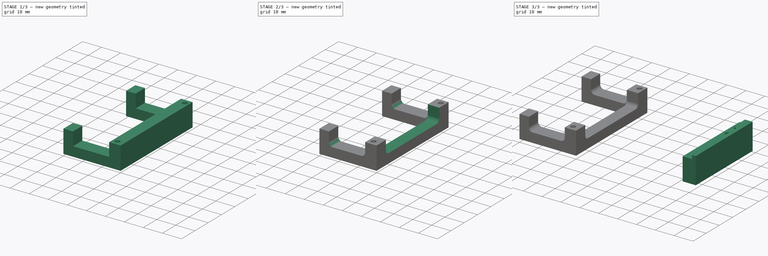
[diagram: build sequence overview — one tinted view per stage of 3, left to right]
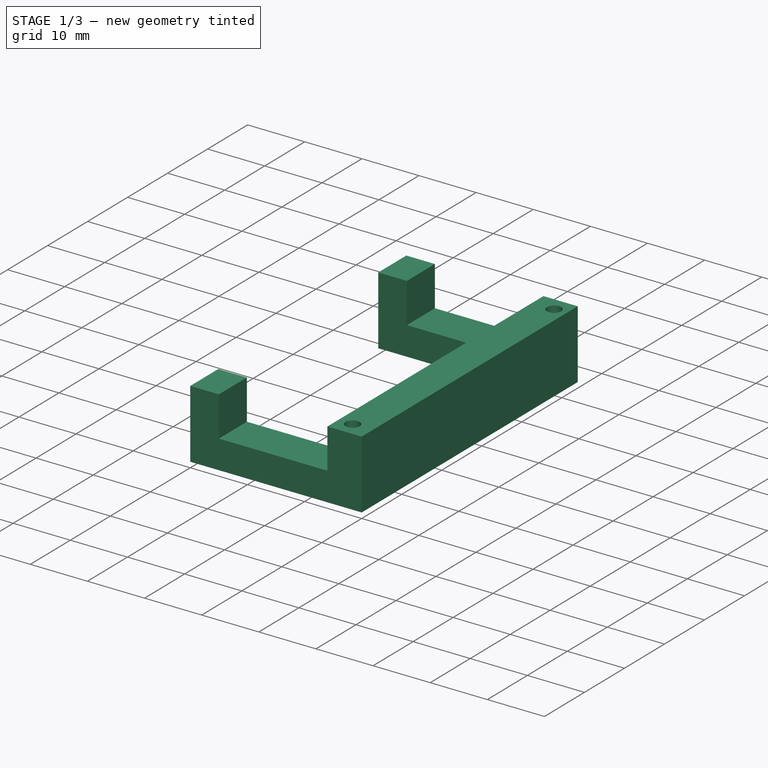
[diagram: stage 1 of 3 — iso view after this stage's code; geometry added in this stage tinted green]
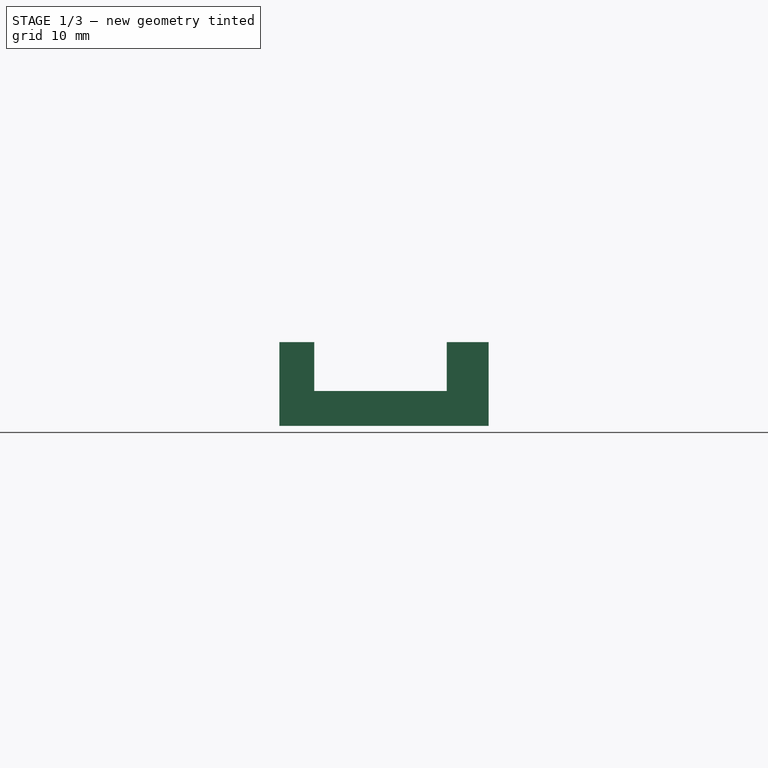
[diagram: stage 1 of 3 — front view after this stage's code; geometry added in this stage tinted green]
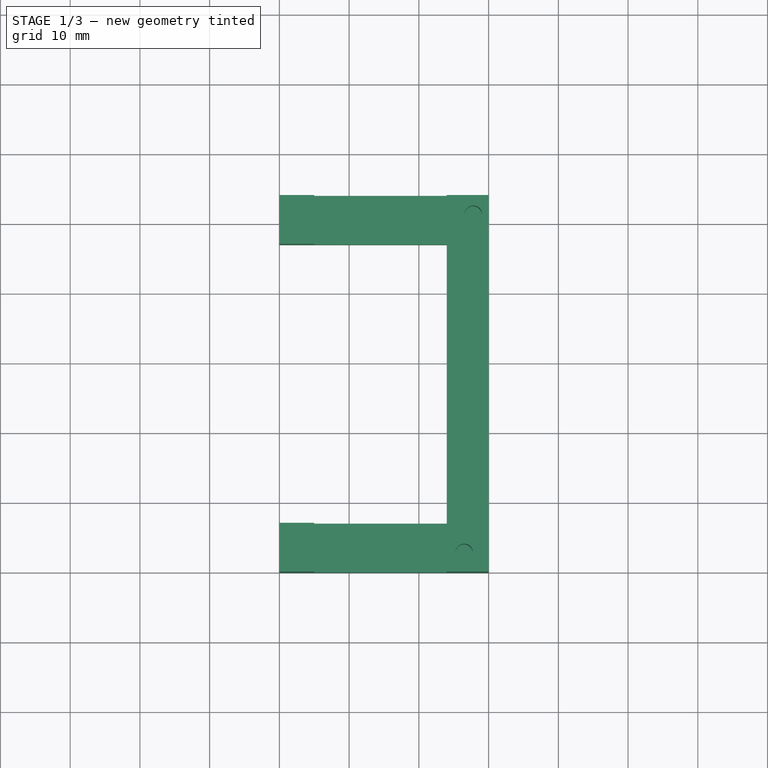
[diagram: stage 1 of 3 — top view after this stage's code; geometry added in this stage tinted green]
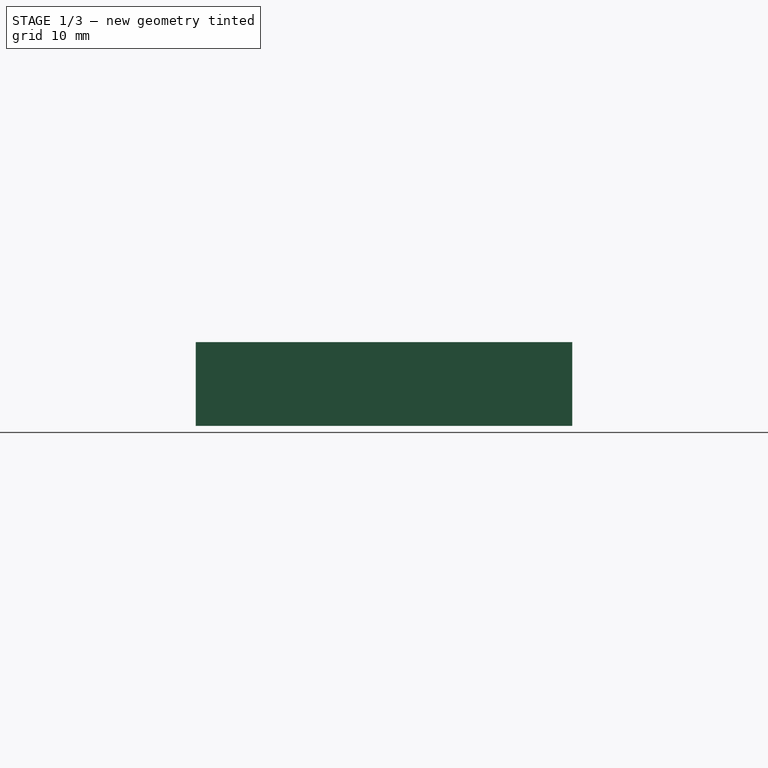
[diagram: stage 1 of 3 — right view after this stage's code; geometry added in this stage tinted green]
FCSTD DOCUMENT  (FreeCAD 0.16R6707 (Git))
Label: Nucleo-64-supports
License: All rights reserved
LicenseURL: http://en.wikipedia.org/wiki/All_rights_reserved
objects: Sketcher::SketchObject×7, PartDesign::Pocket×5, PartDesign::Pad×2, App::DocumentObjectGroup×2, Part::Fillet×1
note: 22 computed .brp shape members not serialized (recipe doc carries the construction recipe); baked Part::Feature solids carry a one-line shape summary decoded from their .brp

FEATURE [App::DocumentObjectGroup] Group001  label="Rear Part"
  Group = -> [Pad001,Pocket002,Pocket003]
FEATURE [Sketcher::SketchObject] Sketch006  label="front support profile"
  sketch-geometry (8):
    g0: LineSegment StartX=-30 StartY=54 StartZ=0 EndX=0 EndY=54 EndZ=0
    g1: LineSegment StartX=0 StartY=54 StartZ=0 EndX=0 EndY=0 EndZ=0
    g2: LineSegment StartX=0 StartY=0 StartZ=0 EndX=-30 EndY=0 EndZ=0
    g3: LineSegment StartX=-30 StartY=0 StartZ=0 EndX=-30 EndY=7 EndZ=0
    g4: LineSegment StartX=-30 StartY=7 StartZ=0 EndX=-6 EndY=7 EndZ=0
    g5: LineSegment StartX=-6 StartY=7 StartZ=0 EndX=-6 EndY=47 EndZ=0
    g6: LineSegment StartX=-6 StartY=47 StartZ=0 EndX=-30 EndY=47 EndZ=0
    g7: LineSegment StartX=-30 StartY=47 StartZ=0 EndX=-30 EndY=54 EndZ=0
  constraints (23):
    c: Horizontal(g0)
    c: Coincident(g0,g1)
    c: Vertical(g1)
    c: Coincident(g1,g2)
    c: Horizontal(g2)
    c: Coincident(g2,g3)
    c: Vertical(g3)
    c: Coincident(g3,g4)
    c: Horizontal(g4)
    c: Coincident(g4,g5)
    c: Vertical(g5)
    c: Coincident(g5,g6)
    c: Horizontal(g6)
    c: Coincident(g6,g7)
    c: Coincident(g7,g0)
    c: Vertical(g7)
    c: Equal(g4,g6)
    c: Equal(g3,g7)
    c: DistanceY(g1,g1) = 54
    c: DistanceX(g5,g0) = 6
    c: DistanceX(g2,g2) = 30
    c: DistanceY(g7,g7) = 7
    c: Coincident(g1,g-1)
FEATURE [PartDesign::Pad] Pad002  label="front support base shape"
  Length = 12
  Length2 = 100
  Sketch = -> Sketch006
  Type = 0
FEATURE [Sketcher::SketchObject] Sketch007  label="screw holes profile"
  ExternalGeometry = -> [Pad002]
  Placement = pos=(0,0,12) rot=(0,0,1;0rad)
  Support = -> Pad002 [Face10]
  sketch-geometry (2):
    g0: Circle CenterX=-2.2 CenterY=51.25 CenterZ=0 NormalX=0 NormalY=0 NormalZ=1 Radius=1.25
    g1: Circle CenterX=-3.5 CenterY=2.75 CenterZ=0 NormalX=0 NormalY=0 NormalZ=1 Radius=1.25
  constraints (6):
    c: DistanceX(g-4,g0) = 3.8
    c: DistanceX(g-4,g1) = 2.5
    c: DistanceY(g0,g-3) = 2.75
    c: Equal(g0,g1)
    c: Radius(g0) = 1.25
    c: DistanceY(g1,g0) = 48.5
FEATURE [PartDesign::Pocket] Pocket004  label="screw holes"
  Length = 8
  Sketch = -> Sketch007
  Type = 0
FEATURE [Sketcher::SketchObject] Sketch008  label="material cutout profile 1"
  ExternalGeometry = -> [Pocket004]
  Placement = pos=(0,0,12) rot=(0,0,1;0rad)
  Support = -> Pocket004 [Face5]
  sketch-geometry (8):
    g0: LineSegment StartX=-25 StartY=54 StartZ=0 EndX=-6 EndY=54 EndZ=0
    g1: LineSegment StartX=-6 StartY=54 StartZ=0 EndX=-6 EndY=47 EndZ=0
    g2: LineSegment StartX=-6 StartY=47 StartZ=0 EndX=-25 EndY=47 EndZ=0
    g3: LineSegment StartX=-25 StartY=47 StartZ=0 EndX=-25 EndY=54 EndZ=0
    g4: LineSegment StartX=-6 StartY=7 StartZ=0 EndX=-25 EndY=7 EndZ=0
    g5: LineSegment StartX=-25 StartY=7 StartZ=0 EndX=-25 EndY=0 EndZ=0
    g6: LineSegment StartX=-25 StartY=0 StartZ=0 EndX=-6 EndY=0 EndZ=0
    g7: LineSegment StartX=-6 StartY=0 StartZ=0 EndX=-6 EndY=7 EndZ=0
  constraints (22):
    c: Coincident(g0,g1)
    c: Coincident(g1,g2)
    c: Coincident(g2,g3)
    c: Coincident(g3,g0)
    c: Horizontal(g0)
    c: Horizontal(g2)
    c: Vertical(g1)
    c: Vertical(g3)
    c: Coincident(g4,g5)
    c: Coincident(g5,g6)
    c: Coincident(g6,g7)
    c: Coincident(g7,g4)
    c: Horizontal(g4)
    c: Horizontal(g6)
    c: Vertical(g5)
    c: Vertical(g7)
    c: Equal(g2,g4)
    c: DistanceX(g2,g2) = 19
    c: Coincident(g1,g-4)
    c: Coincident(g4,g-5)
    c: PointOnObject(g5,g-8)
    c: PointOnObject(g0,g-6)
FEATURE [PartDesign::Pocket] Pocket005  label="material cutout 1"
  Length = 7
  Sketch = -> Sketch008
  Type = 0
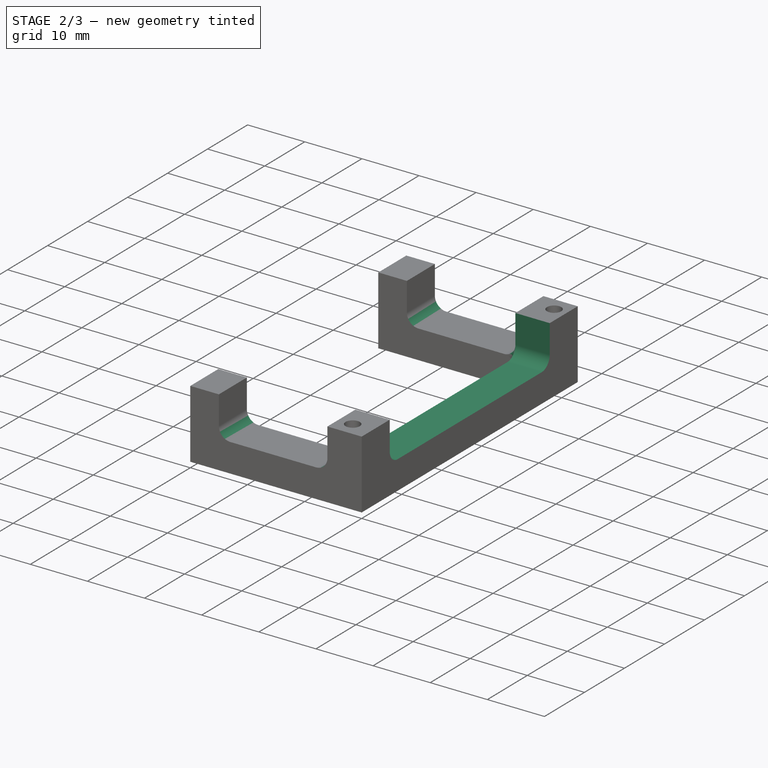
[diagram: stage 2 of 3 — iso view after this stage's code; geometry added in this stage tinted green]
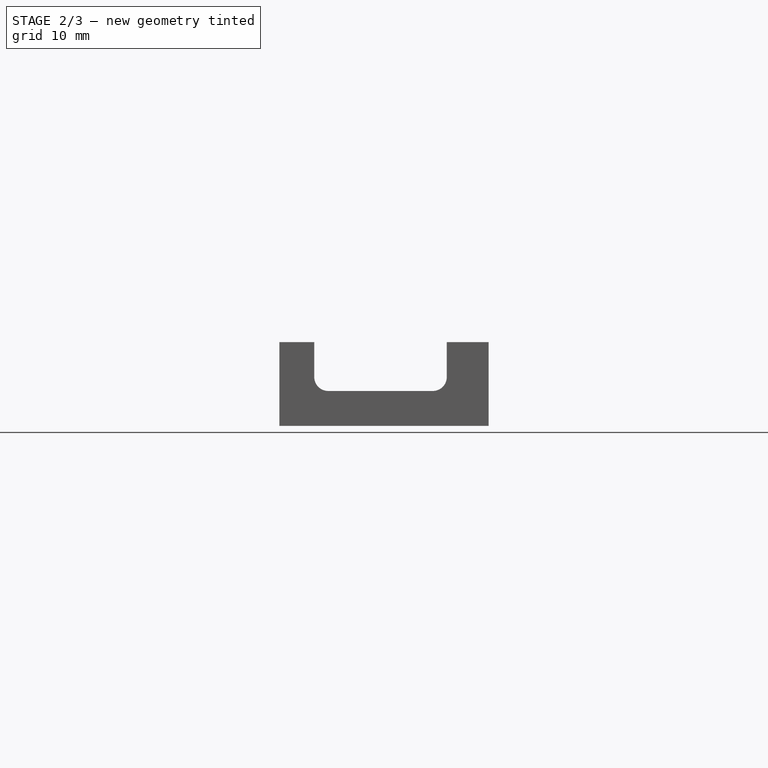
[diagram: stage 2 of 3 — front view after this stage's code; geometry added in this stage tinted green]
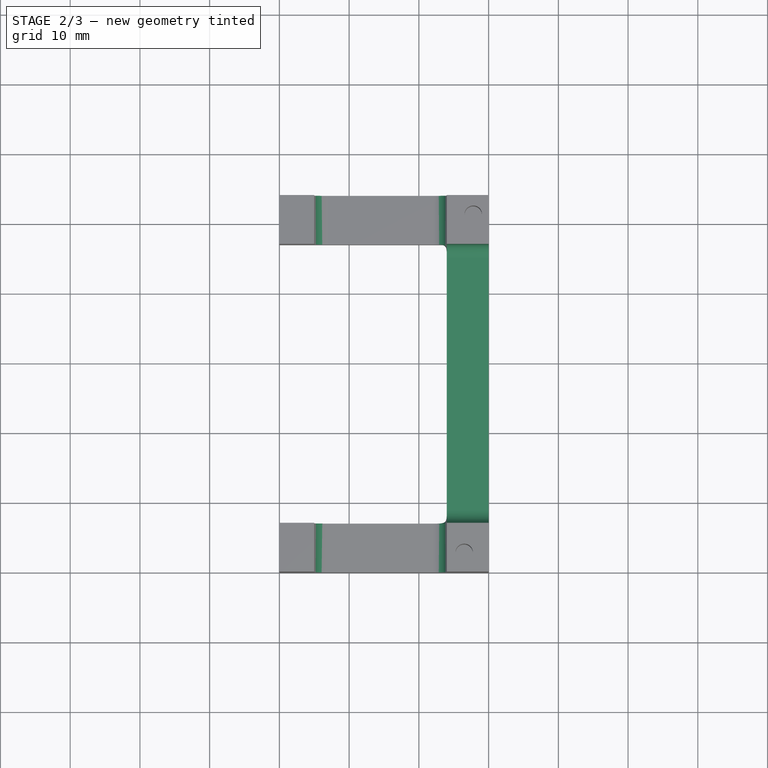
[diagram: stage 2 of 3 — top view after this stage's code; geometry added in this stage tinted green]
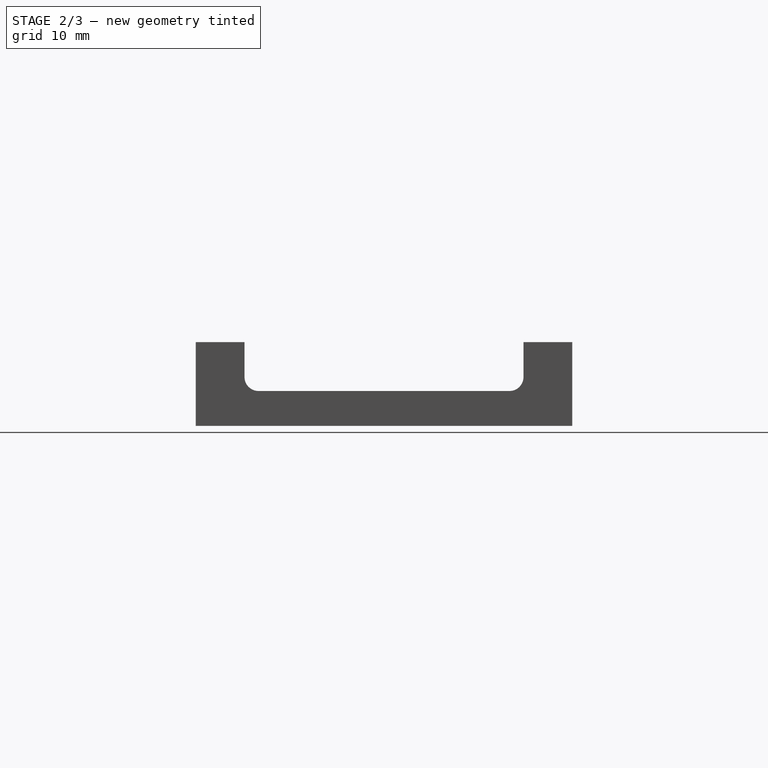
[diagram: stage 2 of 3 — right view after this stage's code; geometry added in this stage tinted green]
FEATURE [Sketcher::SketchObject] Sketch009  label="material cutout profile 2"
  ExternalGeometry = -> [Pocket005]
  Placement = pos=(0,0,12) rot=(0,0,1;0rad)
  Support = -> Pocket005 [Face4]
  sketch-geometry (4):
    g0: LineSegment StartX=-6 StartY=47 StartZ=0 EndX=0 EndY=47 EndZ=0
    g1: LineSegment StartX=0 StartY=47 StartZ=0 EndX=0 EndY=7 EndZ=0
    g2: LineSegment StartX=0 StartY=7 StartZ=0 EndX=-6 EndY=7 EndZ=0
    g3: LineSegment StartX=-6 StartY=7 StartZ=0 EndX=-6 EndY=47 EndZ=0
  constraints (11):
    c: Coincident(g0,g1)
    c: Coincident(g1,g2)
    c: Coincident(g2,g3)
    c: Coincident(g3,g0)
    c: Horizontal(g0)
    c: Horizontal(g2)
    c: Vertical(g1)
    c: Vertical(g3)
    c: Coincident(g0,g-3)
    c: Coincident(g2,g-3)
    c: PointOnObject(g1,g-4)
FEATURE [PartDesign::Pocket] Pocket006  label="material cutout 2"
  Length = 7
  Sketch = -> Sketch009
  Type = 0
FEATURE [Part::Fillet] Fillet001  label="Rounded edges"
  Base = -> Pocket006
  Edges = 6 edges r=2: [Edge25,Edge27,Edge51,Edge53,Edge57,Edge58]
FEATURE [App::DocumentObjectGroup] Group002  label="Front Part"
  Group = -> [Pad002,Pocket004,Pocket005,Pocket006,Fillet001]
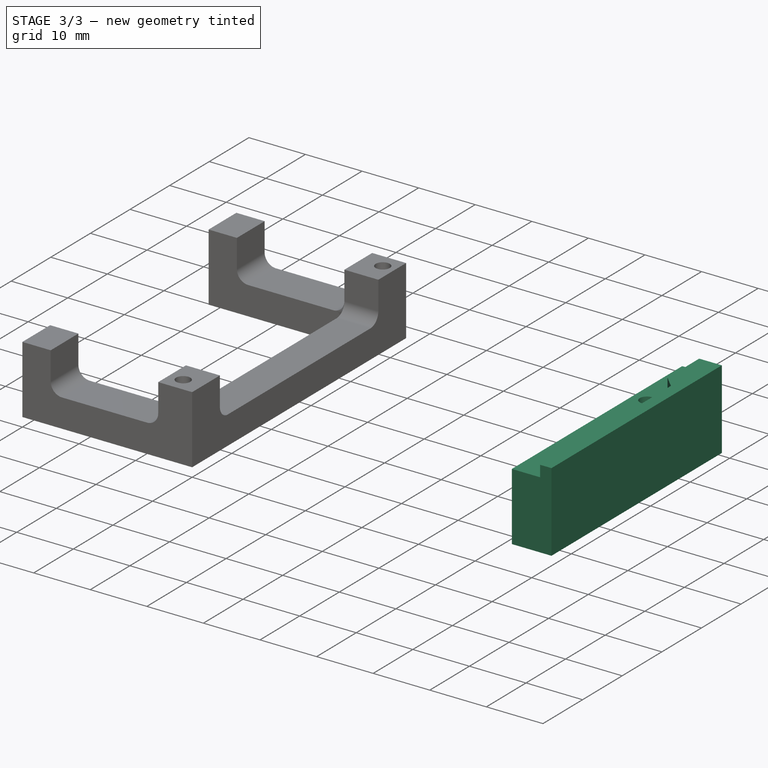
[diagram: stage 3 of 3 — iso view after this stage's code; geometry added in this stage tinted green]
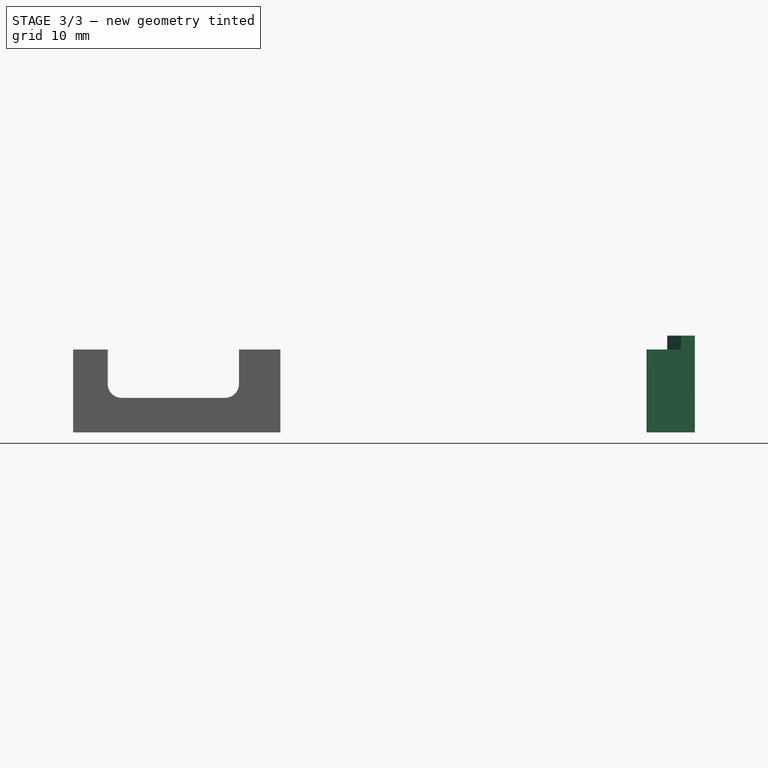
[diagram: stage 3 of 3 — front view after this stage's code; geometry added in this stage tinted green]
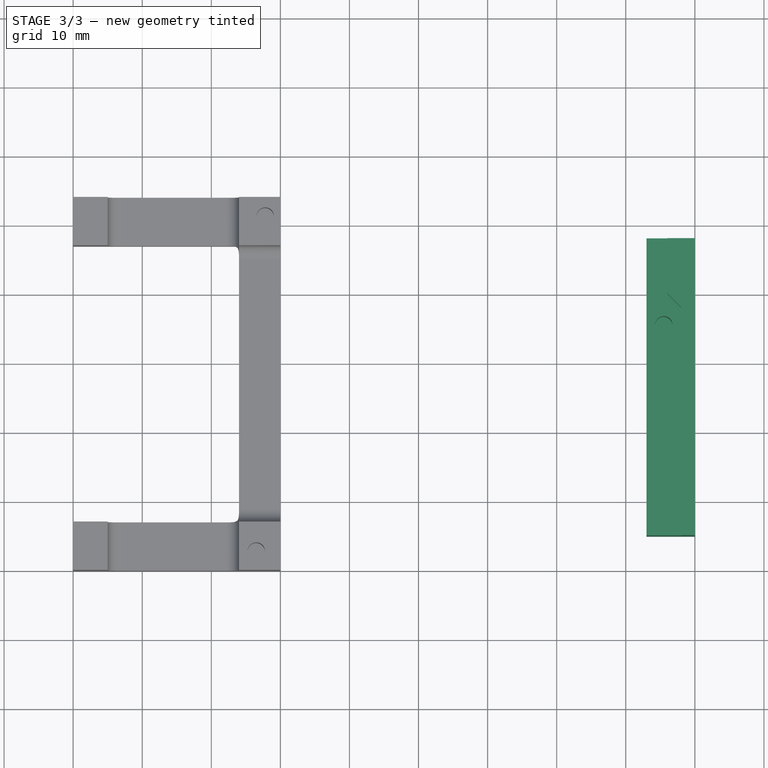
[diagram: stage 3 of 3 — top view after this stage's code; geometry added in this stage tinted green]
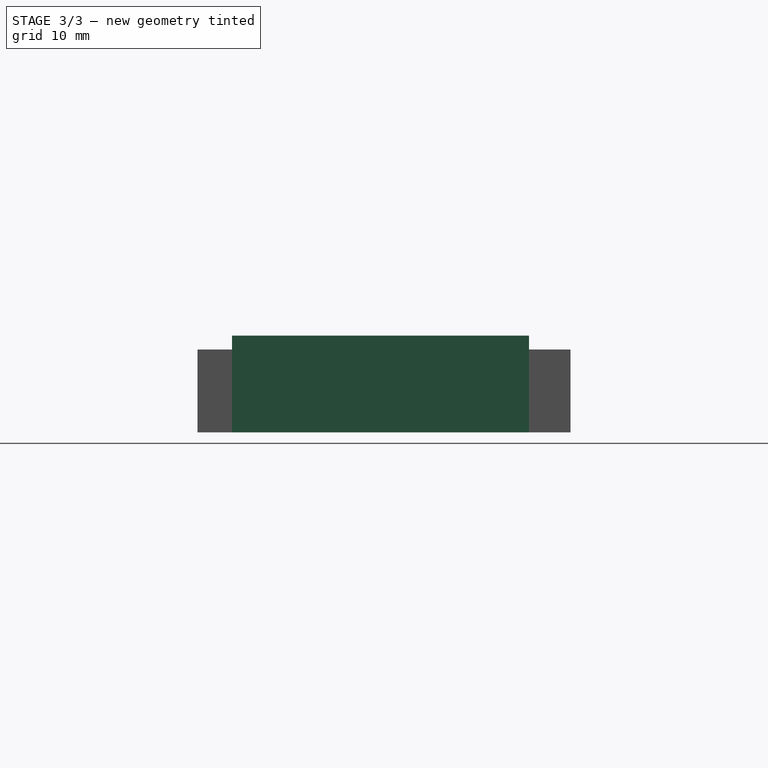
[diagram: stage 3 of 3 — right view after this stage's code; geometry added in this stage tinted green]
FEATURE [Sketcher::SketchObject] Sketch003  label="rear support bar profile"
  sketch-geometry (4):
    g0: LineSegment StartX=53 StartY=48 StartZ=0 EndX=60 EndY=48 EndZ=0
    g1: LineSegment StartX=60 StartY=48 StartZ=0 EndX=60 EndY=5 EndZ=0
    g2: LineSegment StartX=60 StartY=5 StartZ=0 EndX=53 EndY=5 EndZ=0
    g3: LineSegment StartX=53 StartY=5 StartZ=0 EndX=53 EndY=48 EndZ=0
  constraints (12):
    c: Coincident(g0,g1)
    c: Coincident(g1,g2)
    c: Coincident(g2,g3)
    c: Coincident(g3,g0)
    c: Horizontal(g0)
    c: Horizontal(g2)
    c: Vertical(g1)
    c: Vertical(g3)
    c: DistanceX(g2,g2) = 7
    c: DistanceX(g-1,g2) = 53
    c: DistanceY(g1,g1) = 43
    c: DistanceY(g-1,g2) = 5
FEATURE [PartDesign::Pad] Pad001  label="rear support bar"
  Length = 14
  Length2 = 100
  Sketch = -> Sketch003
  Type = 0
FEATURE [Sketcher::SketchObject] Sketch004  label="rear support board contour cutout profile"
  ExternalGeometry = -> [Pad001]
  Placement = pos=(0,0,14) rot=(0,0,1;0rad)
  Support = -> Pad001 [Face6]
  sketch-geometry (6):
    g0: LineSegment StartX=56 StartY=48 StartZ=0 EndX=56 EndY=40 EndZ=0
    g1: LineSegment StartX=56 StartY=40 StartZ=0 EndX=58 EndY=38 EndZ=0
    g2: LineSegment StartX=58 StartY=38 StartZ=0 EndX=58 EndY=5 EndZ=0
    g3: LineSegment StartX=58 StartY=5 StartZ=0 EndX=53 EndY=5 EndZ=0
    g4: LineSegment StartX=53 StartY=5 StartZ=0 EndX=53 EndY=48 EndZ=0
    g5: LineSegment StartX=53 StartY=48 StartZ=0 EndX=56 EndY=48 EndZ=0
  constraints (17):
    c: Vertical(g0)
    c: Coincident(g0,g1)
    c: Coincident(g1,g2)
    c: Vertical(g2)
    c: Coincident(g2,g3)
    c: Horizontal(g3)
    c: Coincident(g3,g4)
    c: Vertical(g4)
    c: Coincident(g4,g5)
    c: Coincident(g5,g0)
    c: Horizontal(g5)
    c: DistanceX(g0,g1) = 2
    c: DistanceY(g1,g0) = 2
    c: DistanceY(g0,g0) = 8
    c: Coincident(g4,g-5)
    c: PointOnObject(g2,g-4)
    c: DistanceX(g2,g-4) = 2
FEATURE [PartDesign::Pocket] Pocket002  label="board contour cutout"
  Length = 2
  Sketch = -> Sketch004
  Type = 0
FEATURE [Sketcher::SketchObject] Sketch005  label="rear support screw hole profile"
  ExternalGeometry = -> [Pocket002]
  Placement = pos=(0,0,12) rot=(0,0,1;0rad)
  Support = -> Pocket002 [Face6]
  sketch-geometry (1):
    g0: Circle CenterX=55.5 CenterY=35.5 CenterZ=0 NormalX=0 NormalY=0 NormalZ=1 Radius=1.25
  constraints (3):
    c: Radius(g0) = 1.25
    c: DistanceY(g0,g-3) = 2.5
    c: DistanceX(g0,g-3) = 2.5
FEATURE [PartDesign::Pocket] Pocket003  label="screw hole pocket"
  Length = 8
  Sketch = -> Sketch005
  Type = 0
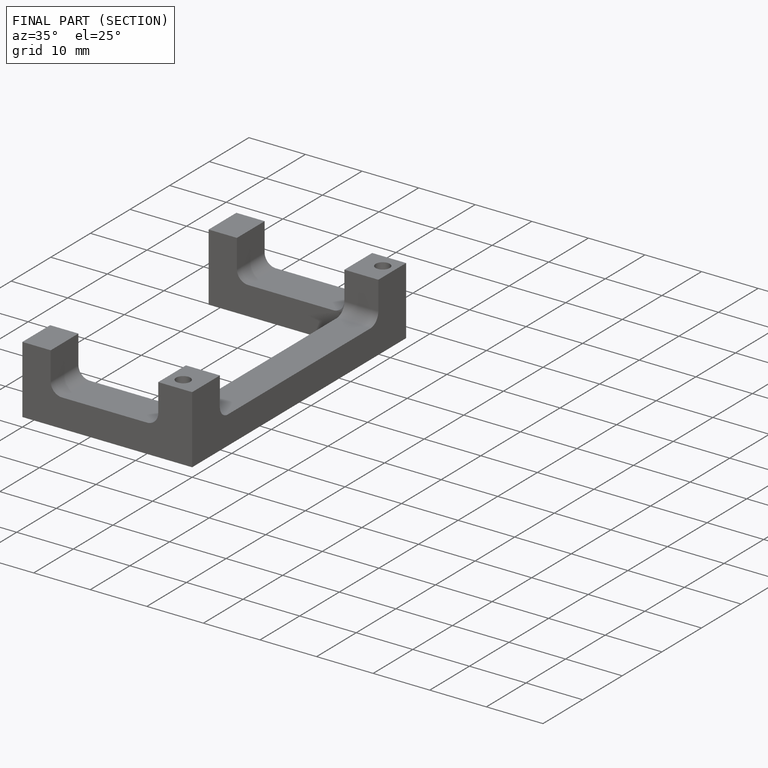
[diagram: finished part — half-section view (interior)]
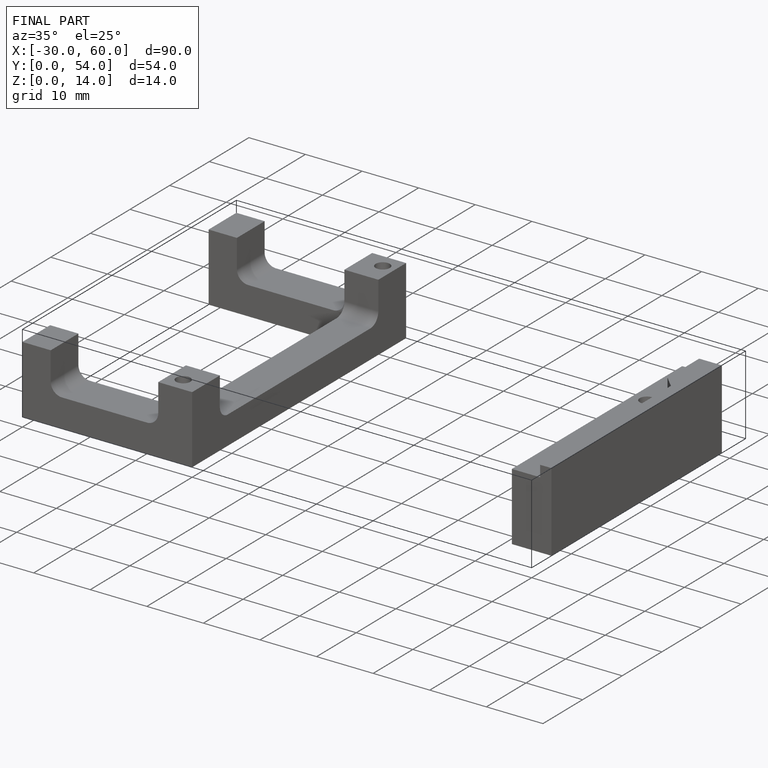
[diagram: finished part — iso view with bounding-box wireframe]
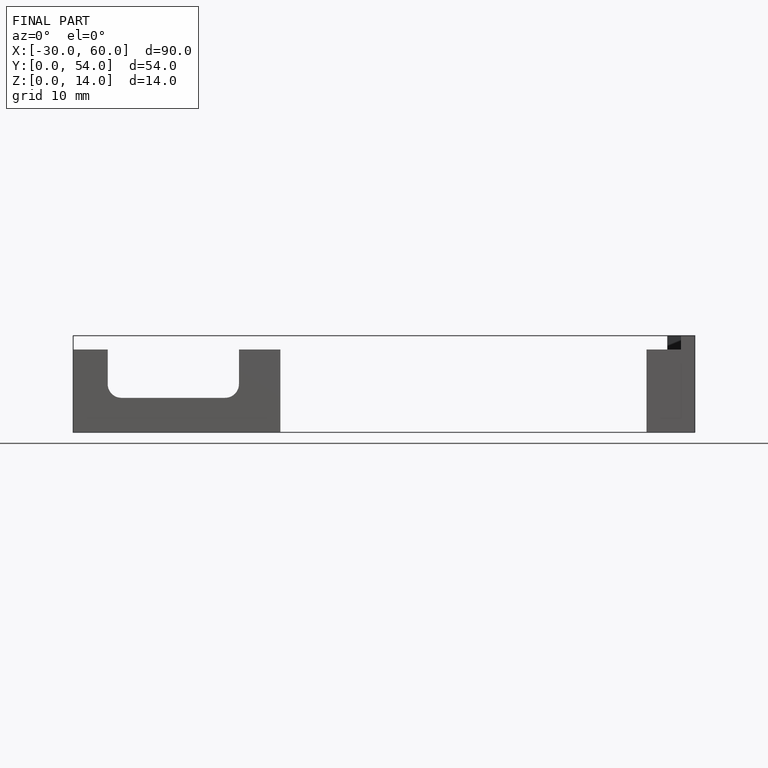
[diagram: finished part — front view with bounding-box wireframe]
